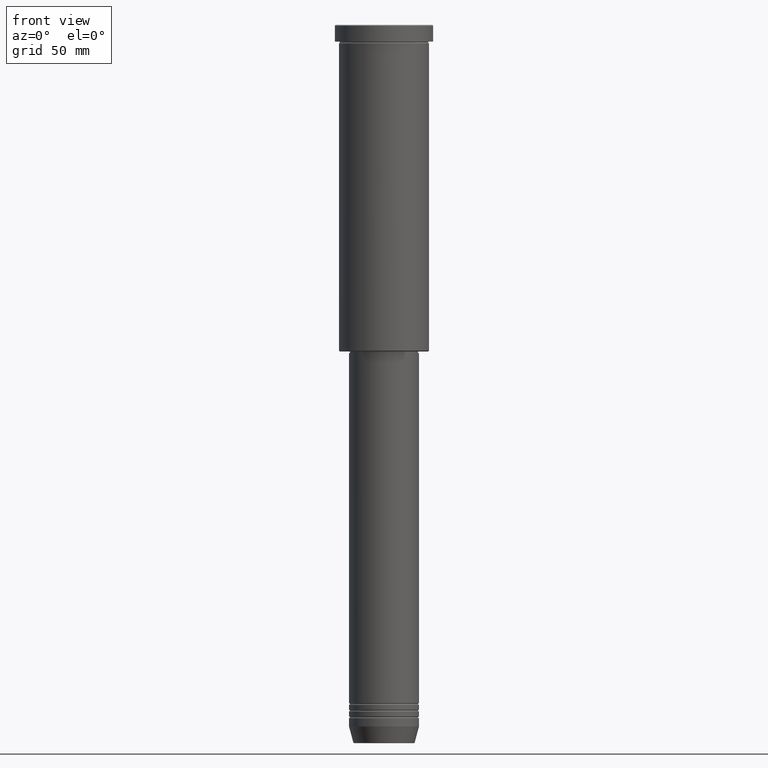
[diagram: clean part render]
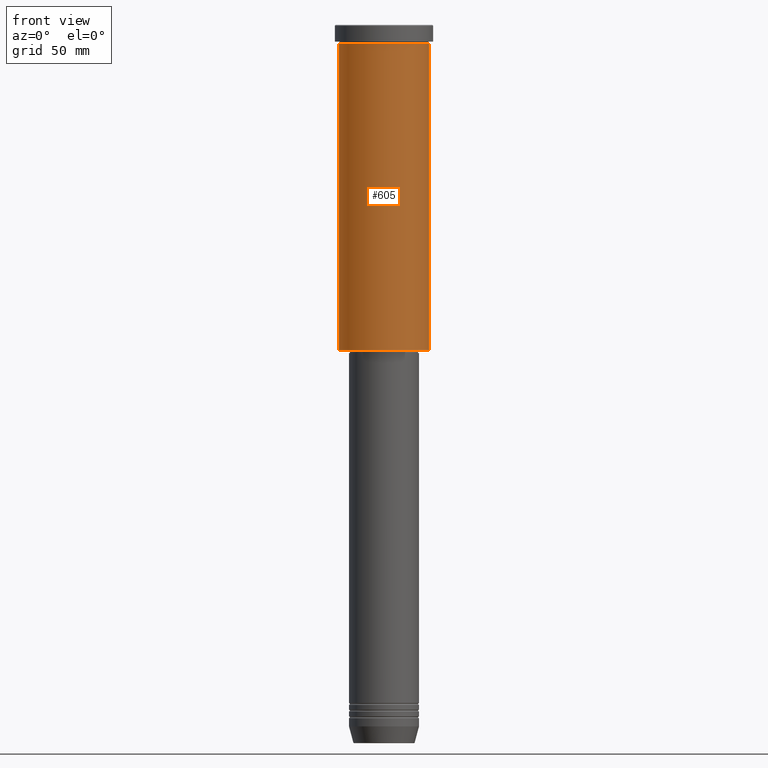
[diagram: same view with one face highlighted and labeled with its STEP entity id]
A machine part, front view. The second image highlights one B-rep face of the part: STEP entity #605.
In plain terms, the highlighted cylindrical surface (partial cylindrical patch) has radius 27 mm, axis along (-0, -0, 1).
Its self-contained STEP definition (entity closure, byte-faithful):
#61 = VERTEX_POINT ( 'NONE', #943 ) ;
#108 = DIRECTION ( 'NONE',  ( -0.000000000000000000, -0.000000000000000000, 1.000000000000000000 ) ) ;
#122 = CYLINDRICAL_SURFACE ( 'NONE', #264, 27.00000000000000355 ) ;
#128 = LINE ( 'NONE', #455, #646 ) ;
#254 = ORIENTED_EDGE ( 'NONE', *, *, #456, .F. ) ;
#264 = AXIS2_PLACEMENT_3D ( 'NONE', #566, #108, #478 ) ;
#310 = EDGE_CURVE ( 'NONE', #769, #61, #128, .T. ) ;
#316 = DIRECTION ( 'NONE',  ( -0.000000000000000000, -0.000000000000000000, 1.000000000000000000 ) ) ;
#346 = CIRCLE ( 'NONE', #1100, 27.00000000000000355 ) ;
#373 = CARTESIAN_POINT ( 'NONE',  ( 0.000000000000000000, 0.000000000000000000, -10.99999999999999289 ) ) ;
#444 = VERTEX_POINT ( 'NONE', #616 ) ;
#455 = CARTESIAN_POINT ( 'NONE',  ( 27.00000000000000355, 0.000000000000000000, 0.000000000000000000 ) ) ;
#456 = EDGE_CURVE ( 'NONE', #444, #61, #877, .T. ) ;
#477 = AXIS2_PLACEMENT_3D ( 'NONE', #373, #655, #1002 ) ;
#478 = DIRECTION ( 'NONE',  ( 1.000000000000000000, 0.000000000000000000, 0.000000000000000000 ) ) ;
#512 = EDGE_CURVE ( 'NONE', #1059, #769, #346, .T. ) ;
#534 = ORIENTED_EDGE ( 'NONE', *, *, #512, .T. ) ;
#554 = CARTESIAN_POINT ( 'NONE',  ( 27.00000000000000355, 0.000000000000000000, -195.4999999999999716 ) ) ;
#555 = VECTOR ( 'NONE', #645, 1000.000000000000000 ) ;
#566 = CARTESIAN_POINT ( 'NONE',  ( 0.000000000000000000, 0.000000000000000000, 0.000000000000000000 ) ) ;
#605 = ADVANCED_FACE ( 'NONE', ( #1031 ), #122, .T. ) ;
#616 = CARTESIAN_POINT ( 'NONE',  ( -27.00000000000000355, 3.306546357697854128E-15, -10.99999999999999289 ) ) ;
#645 = DIRECTION ( 'NONE',  ( -0.000000000000000000, -0.000000000000000000, 1.000000000000000000 ) ) ;
#646 = VECTOR ( 'NONE', #1096, 1000.000000000000000 ) ;
#655 = DIRECTION ( 'NONE',  ( -0.000000000000000000, -0.000000000000000000, 1.000000000000000000 ) ) ;
#720 = CARTESIAN_POINT ( 'NONE',  ( -27.00000000000000355, 3.306546357697854128E-15, 0.000000000000000000 ) ) ;
#769 = VERTEX_POINT ( 'NONE', #554 ) ;
#847 = CARTESIAN_POINT ( 'NONE',  ( 0.000000000000000000, 0.000000000000000000, -195.4999999999999716 ) ) ;
#877 = CIRCLE ( 'NONE', #477, 27.00000000000000355 ) ;
#882 = ORIENTED_EDGE ( 'NONE', *, *, #940, .F. ) ;
#901 = CARTESIAN_POINT ( 'NONE',  ( -27.00000000000000355, 3.306546357697854128E-15, -195.4999999999999716 ) ) ;
#940 = EDGE_CURVE ( 'NONE', #1059, #444, #1078, .T. ) ;
#941 = DIRECTION ( 'NONE',  ( -1.000000000000000000, 0.000000000000000000, 0.000000000000000000 ) ) ;
#943 = CARTESIAN_POINT ( 'NONE',  ( 27.00000000000000355, 0.000000000000000000, -10.99999999999999289 ) ) ;
#1002 = DIRECTION ( 'NONE',  ( 1.000000000000000000, 0.000000000000000000, 0.000000000000000000 ) ) ;
#1031 = FACE_OUTER_BOUND ( 'NONE', #1034, .T. ) ;
#1034 = EDGE_LOOP ( 'NONE', ( #882, #534, #1104, #254 ) ) ;
#1059 = VERTEX_POINT ( 'NONE', #901 ) ;
#1078 = LINE ( 'NONE', #720, #555 ) ;
#1096 = DIRECTION ( 'NONE',  ( -0.000000000000000000, -0.000000000000000000, 1.000000000000000000 ) ) ;
#1100 = AXIS2_PLACEMENT_3D ( 'NONE', #847, #316, #941 ) ;
#1104 = ORIENTED_EDGE ( 'NONE', *, *, #310, .T. ) ;